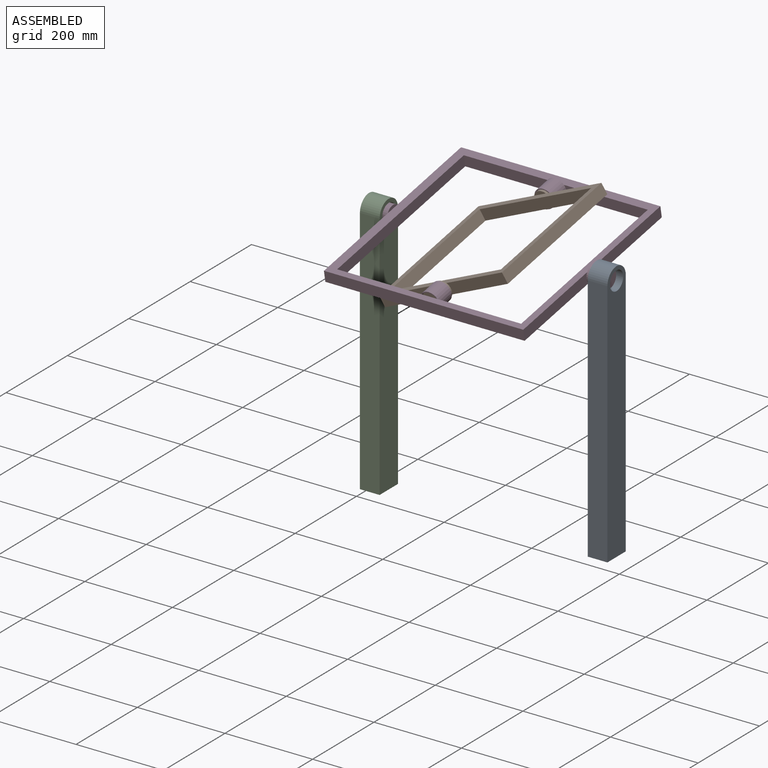
[diagram: assembled view]
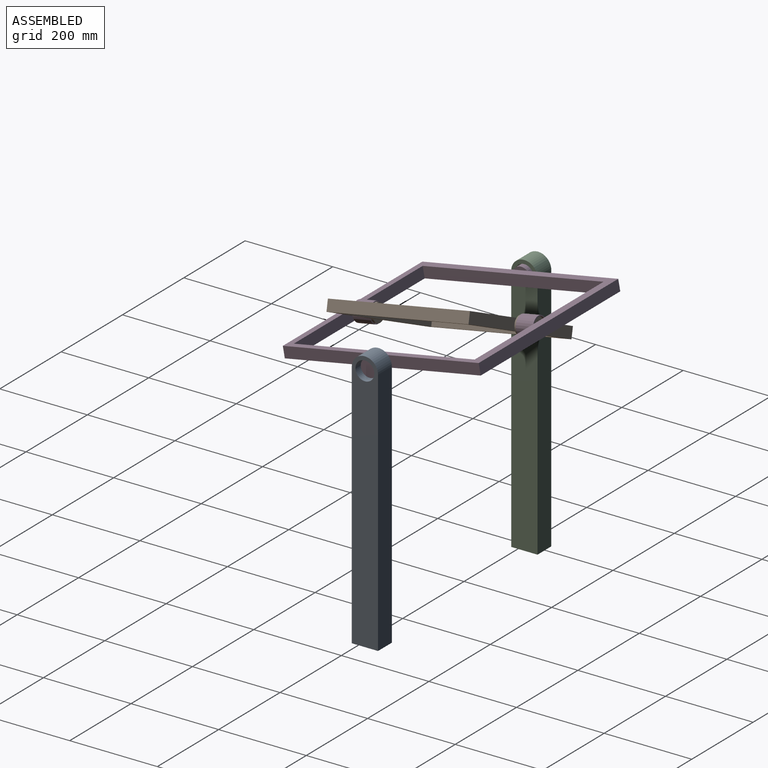
[diagram: assembled view, second angle]
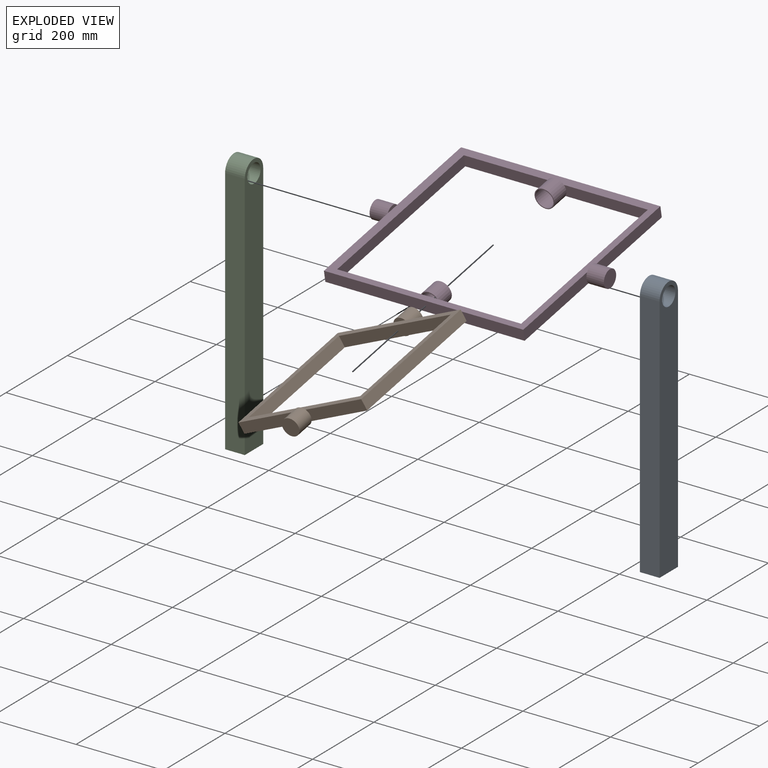
[diagram: exploded view]
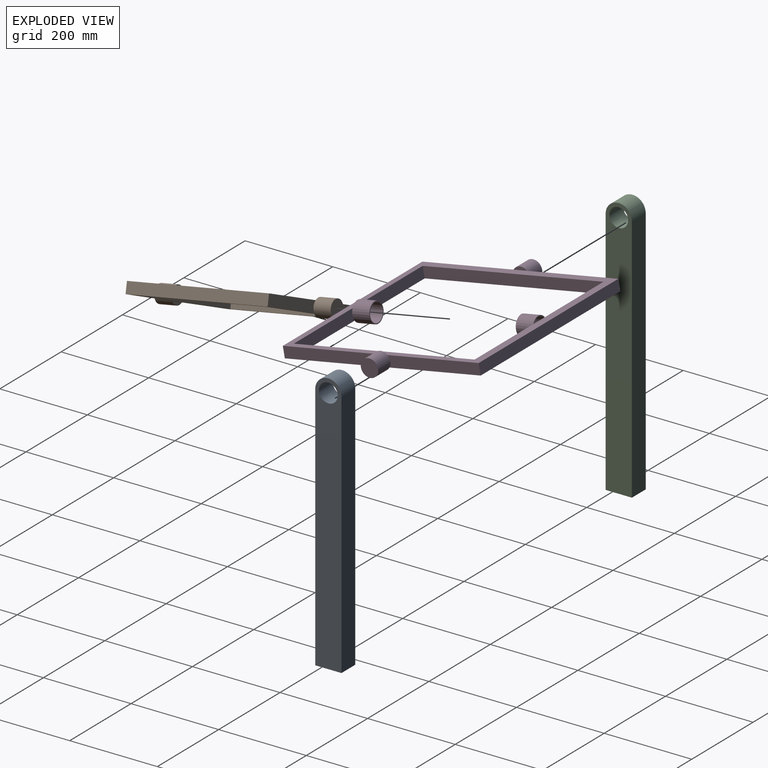
[diagram: exploded view, second angle]
ASSEMBLY  parts=4 mates=3
PART A: 7 faces, bbox 45x60x600 mm
  f0: plane 600x60mm, normal (-1,0,0), area 34161.5mm2, adj f1,f3,f4,f5,f6
  f1: plane 60x45mm, normal (0,0,-1), area 2700mm2, adj f0,f2,f3,f4
  f2: plane 600x60mm, normal (1,0,0), area 34161.5mm2, adj f1,f3,f4,f5,f6
  f3: plane 570x45mm, normal (0,-1,0), area 25650mm2, adj f0,f1,f2,f6
  f4: plane 570x45mm, normal (0,1,0), area 25650mm2, adj f0,f1,f2,f6
  f5: cylinder r=21.5mm len=45mm, axis (1,0,0), area 6079mm2, adj f0,f2
  f6: cylinder r=30mm len=60mm, axis (1,0,0), area 4241.2mm2, adj f0,f2,f3,f4
PART B: 20 faces, bbox 410x330x40 mm
  f0: plane 149.39x25mm, normal (-1,0,0), area 3659.8mm2, adj f2,f10,f11,f17
  f1: plane 149.39x25mm, normal (1,0,0), area 3659.8mm2, adj f2,f10,f11,f13
  f2: plane 330x25mm, normal (0,1,0), area 8250mm2, adj f0,f1,f10,f11
  f3: plane 149.39x25mm, normal (-1,0,0), area 3659.8mm2, adj f4,f10,f11,f17
  f4: plane 330x25mm, normal (0,-1,0), area 8250mm2, adj f3,f9,f10,f11
  f5: plane 300x25mm, normal (1,0,0), area 7500mm2, adj f6,f8,f10,f11
  f6: plane 300x25mm, normal (0,-1,0), area 7500mm2, adj f5,f7,f10,f11
  f7: plane 300x25mm, normal (-1,0,0), area 7500mm2, adj f6,f8,f10,f11
  f8: plane 300x25mm, normal (0,1,0), area 7500mm2, adj f5,f7,f10,f11
  f9: plane 149.39x25mm, normal (1,0,0), area 3659.8mm2, adj f4,f10,f11,f13
  f10: plane 330x330mm, normal (0,0,1), area 18900mm2, adj f0,f1,f2,f3,f4,f5,f6,f7
  f11: plane 330x330mm, normal (0,0,-1), area 18900mm2, adj f0,f1,f2,f3,f4,f5,f6,f7
  f12: plane 31.23x7.5mm, normal (-1,0,0), area 163.1mm2, adj f10,f13
  f13: cylinder r=20mm len=40mm, axis (-1,0,0), area 5026.5mm2, adj f1,f9,f12,f14,f15
  f14: plane 40x40mm, normal (1,0,0), area 1256.6mm2, adj f13
  f15: plane 31.23x7.5mm, normal (-1,0,0), area 163.1mm2, adj f11,f13
  f16: plane 31.23x7.5mm, normal (1,0,0), area 163.1mm2, adj f11,f17
  f17: cylinder r=20mm len=40mm, axis (1,0,0), area 5026.5mm2, adj f0,f3,f16,f18,f19
  f18: plane 40x40mm, normal (-1,0,0), area 1256.6mm2, adj f17
  f19: plane 31.23x7.5mm, normal (1,0,0), area 163.1mm2, adj f10,f17
PART C: same geometry as A
PART D: 34 faces, bbox 535x455x45 mm
  f0: plane 212x25mm, normal (-1,0,0), area 5222.3mm2, adj f5,f12,f13,f31
  f1: plane 211.89x25mm, normal (1,0,0), area 5222.3mm2, adj f7,f12,f13,f27
  f2: plane 191.29x25mm, normal (0,1,0), area 4717.9mm2, adj f10,f12,f13,f19
  f3: plane 191.29x25mm, normal (0,1,0), area 4717.9mm2, adj f8,f12,f13,f19
  f4: plane 191.29x25mm, normal (0,-1,0), area 4717.9mm2, adj f10,f12,f13,f15
  f5: plane 455x25mm, normal (0,1,0), area 11375mm2, adj f0,f11,f12,f13
  f6: plane 212x25mm, normal (-1,0,0), area 5222.3mm2, adj f7,f12,f13,f31
  f7: plane 455x25mm, normal (0,-1,0), area 11375mm2, adj f1,f6,f12,f13
  f8: plane 420x25mm, normal (1,0,0), area 10500mm2, adj f3,f9,f12,f13
  f9: plane 191.29x25mm, normal (0,-1,0), area 4717.9mm2, adj f8,f12,f13,f15
  f10: plane 420x25mm, normal (-1,0,0), area 10500mm2, adj f2,f4,f12,f13
  f11: plane 211.89x25mm, normal (1,0,0), area 5222.3mm2, adj f5,f12,f13,f27
  f12: plane 455x455mm, normal (0,0,1), area 30625mm2, adj f0,f1,f2,f3,f4,f5,f6,f7
  f13: plane 455x455mm, normal (0,0,-1), area 30625mm2, adj f0,f1,f2,f3,f4,f5,f6,f7
  f14: plane 37.42x10mm, normal (0,1,0), area 81.7mm2, adj f13,f15,f25
  f15: cylinder r=22.5mm len=45mm, axis (0,1,0), area 5654.9mm2, adj f4,f9,f14,f16,f17
  f16: plane 45x45mm, normal (0,-1,0), area 270.2mm2, adj f15,f25
  f17: plane 37.42x10mm, normal (0,1,0), area 81.7mm2, adj f12,f15,f25
  f18: plane 37.42x10mm, normal (0,-1,0), area 81.7mm2, adj f12,f19,f23
  f19: cylinder r=22.5mm len=45mm, axis (0,-1,0), area 5654.9mm2, adj f2,f3,f18,f20,f21
  f20: plane 45x45mm, normal (0,1,0), area 270.2mm2, adj f19,f23
  f21: plane 37.42x10mm, normal (0,-1,0), area 81.7mm2, adj f13,f19,f23
  f22: plane 41x25mm, normal (0,1,0), area 957.4mm2, adj f12,f13,f23
  f23: cylinder r=20.5mm len=41mm, axis (0,1,0), area 5152.2mm2, adj f18,f20,f21,f22
  f24: plane 41x25mm, normal (0,-1,0), area 957.4mm2, adj f12,f13,f25
  f25: cylinder r=20.5mm len=41mm, axis (0,-1,0), area 5152.2mm2, adj f14,f16,f17,f24
  f26: plane 31.23x7.5mm, normal (-1,0,0), area 163.1mm2, adj f12,f27
  f27: cylinder r=20mm len=40mm, axis (-1,0,0), area 5026.5mm2, adj f1,f11,f26,f28,f29
  f28: plane 40x40mm, normal (1,0,0), area 1256.6mm2, adj f27
  f29: plane 31.23x7.5mm, normal (-1,0,0), area 163.1mm2, adj f13,f27
  f30: plane 31x7.36mm, normal (1,0,0), area 158.9mm2, adj f13,f31
  f31: cylinder r=20mm len=40mm, axis (1,0,0), area 5026.5mm2, adj f0,f6,f30,f32,f33
  f32: plane 40x40mm, normal (-1,0,0), area 1256.6mm2, adj f31
  f33: plane 31.44x7.64mm, normal (1,0,0), area 167.4mm2, adj f12,f31
PLACE A t=(576.22,63.24,-413.28)mm
PLACE B rot(axis=(0.7,0.68,0.22),169.7deg) t=(295,40.43,38.96)mm
PLACE C t=(56.22,63.21,-413.15)mm fixed
PLACE D rot(axis=(1,0,0),10.6deg) t=(281.3,56.29,13.04)mm
MATE revolute C.f5 <-> D.f31  axis (1,0,0) through (50.57,33.21,21.56)mm
MATE revolute A.f5 <-> D.f27  axis (1,0,0) through (525.57,33.24,21.43)mm
MATE revolute D.f15 <-> B.f13  axis (0,-0.98,-0.18) through (290.57,197.86,52.38)mm
